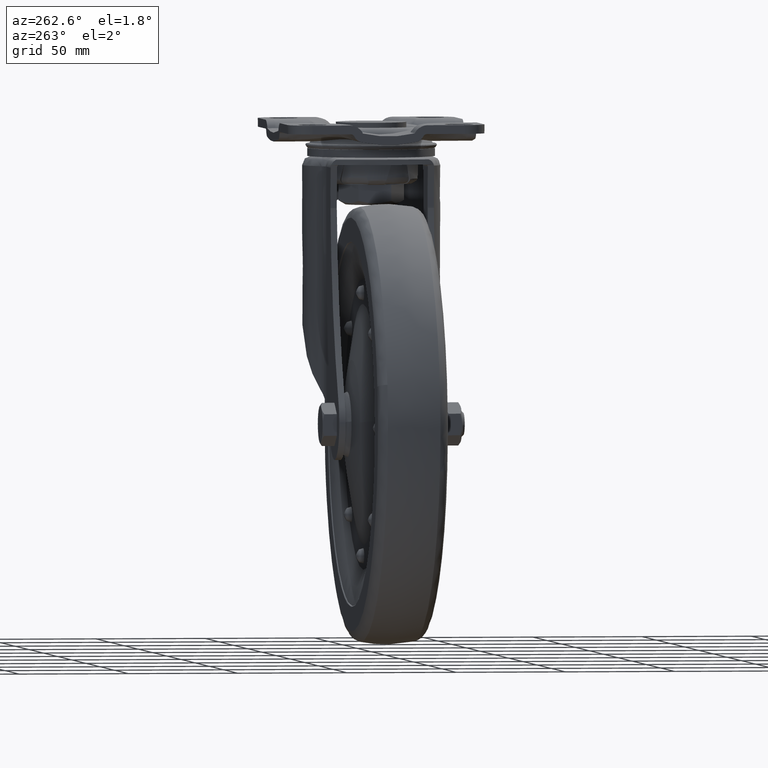
[diagram: clean part render]
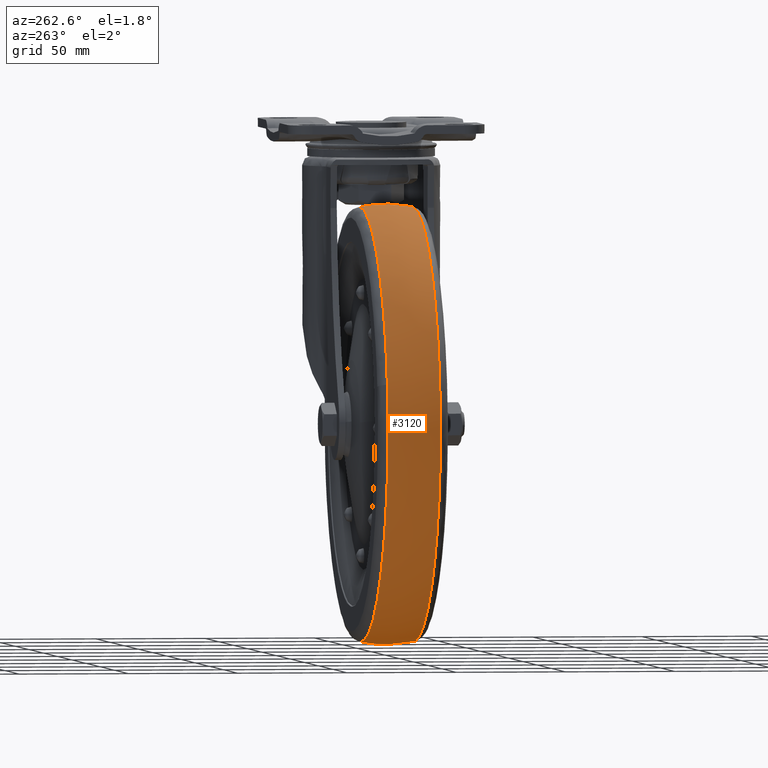
[diagram: same view with one face highlighted and labeled with its STEP entity id]
A machine part, auxiliary view. The second image highlights one B-rep face of the part: STEP entity #3120.
In plain terms, the highlighted face is a freeform B-spline surface patch.
Its self-contained STEP definition (entity closure, byte-faithful):
#2896=CARTESIAN_POINT('',(-150.037951112125400,-12.000000000226500,-154.240212177106600));
#2897=VERTEX_POINT('',#2896);
#2898=CARTESIAN_POINT('',(-53.0,-11.999999999998520,-234.516986826796510));
#2899=VERTEX_POINT('',#2898);
#2900=CARTESIAN_POINT('',(-150.037951112125370,-12.000000000226503,-154.240212177106660));
#2901=CARTESIAN_POINT('',(-134.724337346452730,-12.000000000112813,-234.516986826792220));
#2902=CARTESIAN_POINT('',(-53.0,-11.999999999998520,-234.516986826796510));
#2910=(BOUNDED_CURVE()B_SPLINE_CURVE(2,(#2900,#2901,#2902),.UNSPECIFIED.,.F.,.U.)B_SPLINE_CURVE_WITH_KNOTS((3,3),(0.782161366259674,1.0),.UNSPECIFIED.)CURVE()GEOMETRIC_REPRESENTATION_ITEM()RATIONAL_B_SPLINE_CURVE((0.934335795159948,0.744786165527485,1.0))REPRESENTATION_ITEM(''));
#2911=EDGE_CURVE('',#2897,#2899,#2910,.T.);
#2990=CARTESIAN_POINT('',(-53.0,-11.999999999997030,-36.941479173203163));
#2991=VERTEX_POINT('',#2990);
#2992=CARTESIAN_POINT('',(-53.0,-11.999999999997030,-36.941479173203163));
#2993=CARTESIAN_POINT('',(-151.787753826777330,-12.000000000091582,-36.941479173199554));
#2994=CARTESIAN_POINT('',(-151.787753826754600,-12.000000000206620,-135.729232999991890));
#2995=CARTESIAN_POINT('',(-151.787753826752440,-12.000000000217495,-145.067425116352100));
#2996=CARTESIAN_POINT('',(-150.037951112125370,-12.000000000226503,-154.240212177106660));
#3004=(BOUNDED_CURVE()B_SPLINE_CURVE(2,(#2992,#2993,#2994,#2995,#2996),.UNSPECIFIED.,.F.,.U.)B_SPLINE_CURVE_WITH_KNOTS((3,2,3),(0.500000000000000,0.750000000000000,0.782161366259674),.UNSPECIFIED.)CURVE()GEOMETRIC_REPRESENTATION_ITEM()RATIONAL_B_SPLINE_CURVE((1.0,0.707106781186548,1.0,0.962320615659062,0.934335795159948))REPRESENTATION_ITEM(''));
#3005=EDGE_CURVE('',#2991,#2897,#3004,.T.);
#3027=CARTESIAN_POINT('',(-50.245239515783695,-13.170888441886470,-37.192682899644936));
#3028=CARTESIAN_POINT('',(-50.162390116019765,-0.000004381945792,-34.229196935113372));
#3029=CARTESIAN_POINT('',(-50.245239463312245,13.170880100298078,-37.192681022764660));
#3030=CARTESIAN_POINT('',(-51.614598240201730,-13.170888441886461,-37.192682899644922));
#3031=CARTESIAN_POINT('',(-51.572932293238715,-0.000004381945792,-34.229196935113379));
#3032=CARTESIAN_POINT('',(-51.614598213813238,13.170880100298072,-37.192681022764681));
#3033=CARTESIAN_POINT('',(-151.536550100355040,-13.170888441886467,-37.192682899644950));
#3034=CARTESIAN_POINT('',(-154.500036064886590,-0.000004381945791,-34.229196935113414));
#3035=CARTESIAN_POINT('',(-151.536551977235260,13.170880100298081,-37.192681022764688));
#3036=CARTESIAN_POINT('',(-151.536550100355040,-13.170888441886465,-135.729232999999940));
#3037=CARTESIAN_POINT('',(-154.500036064886590,-0.000004381945792,-135.729233000000050));
#3038=CARTESIAN_POINT('',(-151.536551977235380,13.170880100298078,-135.729232999999940));
#3039=CARTESIAN_POINT('',(-151.536550100355040,-13.170888441886467,-234.265783100355070));
#3040=CARTESIAN_POINT('',(-154.500036064886590,-0.000004381945791,-237.229269064886580));
#3041=CARTESIAN_POINT('',(-151.536551977235260,13.170880100298081,-234.265784977235340));
#3042=CARTESIAN_POINT('',(-51.614598240201730,-13.170888441886461,-234.265783100355090));
#3043=CARTESIAN_POINT('',(-51.572932293238715,-0.000004381945792,-237.229269064886640));
#3044=CARTESIAN_POINT('',(-51.614598213813224,13.170880100298072,-234.265784977235260));
#3045=CARTESIAN_POINT('',(-50.245239515783673,-13.170888441886468,-234.265783100355070));
#3046=CARTESIAN_POINT('',(-50.162390116019765,-0.000004381945792,-237.229269064886610));
#3047=CARTESIAN_POINT('',(-50.245239463312231,13.170880100298078,-234.265784977235340));
#3055=(BOUNDED_SURFACE()B_SPLINE_SURFACE(2,2,((#3027,#3030,#3033,#3036,#3039,#3042,#3045),(#3028,#3031,#3034,#3037,#3040,#3043,#3046),(#3029,#3032,#3035,#3038,#3041,#3044,#3047)),.UNSPECIFIED.,.F.,.F.,.U.)B_SPLINE_SURFACE_WITH_KNOTS((3,3),(3,1,2,1,3),(0.0,26.666983283726552),(0.0,3.313708498984784,168.999133448222610,334.684558397460420,337.998266896445220),.UNSPECIFIED.)GEOMETRIC_REPRESENTATION_ITEM()RATIONAL_B_SPLINE_SURFACE(((0.880871718098796,0.875771444463754,0.615657489076613,0.870671170828712,0.615657489076613,0.875771444463754,0.880871718098796),(0.859386531281695,0.854410657521931,0.600641095773957,0.849434783762167,0.600641095773957,0.854410657521931,0.859386531281695),(0.880871704151278,0.875771430596992,0.615657479328436,0.870671157042707,0.615657479328436,0.875771430596992,0.880871704151278)))REPRESENTATION_ITEM('')SURFACE());
#3056=CARTESIAN_POINT('',(-53.0,11.999999961965470,-36.941479165439951));
#3057=VERTEX_POINT('',#3056);
#3058=CARTESIAN_POINT('',(-52.999999999999993,-11.999999999997035,-36.941479173203128));
#3059=CARTESIAN_POINT('',(-52.999999999999986,-0.000000019808114,-34.491989434464500));
#3060=CARTESIAN_POINT('',(-53.000000000000007,11.999999961965454,-36.941479165439965));
#3068=(BOUNDED_CURVE()B_SPLINE_CURVE(2,(#3058,#3059,#3060),.UNSPECIFIED.,.F.,.U.)B_SPLINE_CURVE_WITH_KNOTS((3,3),(0.458261283577760,0.541738716287229),.UNSPECIFIED.)CURVE()GEOMETRIC_REPRESENTATION_ITEM()RATIONAL_B_SPLINE_CURVE((0.868829938584044,0.851276009142221,0.868829938527263))REPRESENTATION_ITEM(''));
#3069=EDGE_CURVE('',#2991,#3057,#3068,.T.);
#3070=ORIENTED_EDGE('',*,*,#3069,.T.);
#3071=CARTESIAN_POINT('',(-149.542122817601010,11.999999962913190,-114.785526814652500));
#3072=VERTEX_POINT('',#3071);
#3073=CARTESIAN_POINT('',(-53.0,11.999999961965470,-36.941479165439951));
#3074=CARTESIAN_POINT('',(-132.654749569670170,11.999999962439329,-36.941479165067449));
#3075=CARTESIAN_POINT('',(-149.542122817601010,11.999999962913193,-114.785526814652500));
#3083=(BOUNDED_CURVE()B_SPLINE_CURVE(2,(#3073,#3074,#3075),.UNSPECIFIED.,.F.,.U.)B_SPLINE_CURVE_WITH_KNOTS((3,3),(0.500000000000000,0.713703258531894),.UNSPECIFIED.)CURVE()GEOMETRIC_REPRESENTATION_ITEM()RATIONAL_B_SPLINE_CURVE((1.0,0.749631058950681,0.927299386200715))REPRESENTATION_ITEM(''));
#3084=EDGE_CURVE('',#3057,#3072,#3083,.T.);
#3085=ORIENTED_EDGE('',*,*,#3084,.T.);
#3086=CARTESIAN_POINT('',(-53.0,11.999999961965480,-234.516986834559990));
#3087=VERTEX_POINT('',#3086);
#3088=CARTESIAN_POINT('',(-149.542122817601010,11.999999962913193,-114.785526814652500));
#3089=CARTESIAN_POINT('',(-151.787753830081930,11.999999962872224,-125.136989117475620));
#3090=CARTESIAN_POINT('',(-151.787753829897810,11.999999962821420,-135.729232999327190));
#3091=CARTESIAN_POINT('',(-151.787753828180800,11.999999962347566,-234.516986834259650));
#3092=CARTESIAN_POINT('',(-53.0,11.999999961965480,-234.516986834559990));
#3100=(BOUNDED_CURVE()B_SPLINE_CURVE(2,(#3088,#3089,#3090,#3091,#3092),.UNSPECIFIED.,.F.,.U.)B_SPLINE_CURVE_WITH_KNOTS((3,2,3),(0.713703258531894,0.750000000000000,1.0),.UNSPECIFIED.)CURVE()GEOMETRIC_REPRESENTATION_ITEM()RATIONAL_B_SPLINE_CURVE((0.927299386200715,0.957475722235867,1.0,0.707106781186548,1.0))REPRESENTATION_ITEM(''));
#3101=EDGE_CURVE('',#3072,#3087,#3100,.T.);
#3102=ORIENTED_EDGE('',*,*,#3101,.T.);
#3103=CARTESIAN_POINT('',(-52.999999999999993,-11.999999999998538,-234.516986826796600));
#3104=CARTESIAN_POINT('',(-52.999999999999993,-0.000000019808878,-236.966476565535660));
#3105=CARTESIAN_POINT('',(-53.000000000000014,11.999999961965489,-234.516986834560040));
#3113=(BOUNDED_CURVE()B_SPLINE_CURVE(2,(#3103,#3104,#3105),.UNSPECIFIED.,.F.,.U.)B_SPLINE_CURVE_WITH_KNOTS((3,3),(0.458261283577755,0.541738716287229),.UNSPECIFIED.)CURVE()GEOMETRIC_REPRESENTATION_ITEM()RATIONAL_B_SPLINE_CURVE((0.868829938584046,0.851276009142220,0.868829938527263))REPRESENTATION_ITEM(''));
#3114=EDGE_CURVE('',#2899,#3087,#3113,.T.);
#3115=ORIENTED_EDGE('',*,*,#3114,.F.);
#3116=ORIENTED_EDGE('',*,*,#2911,.F.);
#3117=ORIENTED_EDGE('',*,*,#3005,.F.);
#3118=EDGE_LOOP('',(#3070,#3085,#3102,#3115,#3116,#3117));
#3119=FACE_OUTER_BOUND('',#3118,.T.);
#3120=ADVANCED_FACE('',(#3119),#3055,.T.);